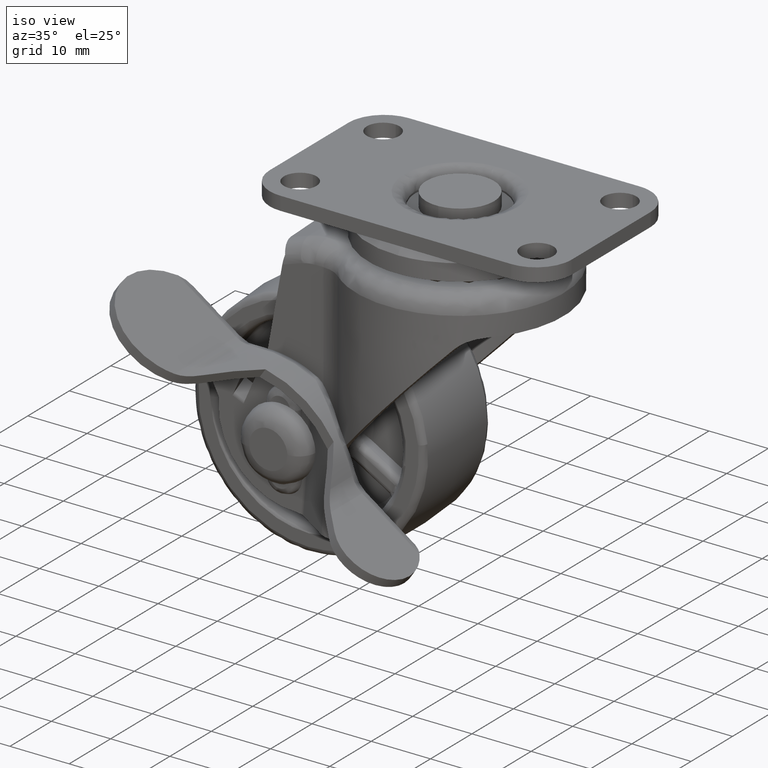
[diagram: clean part render]
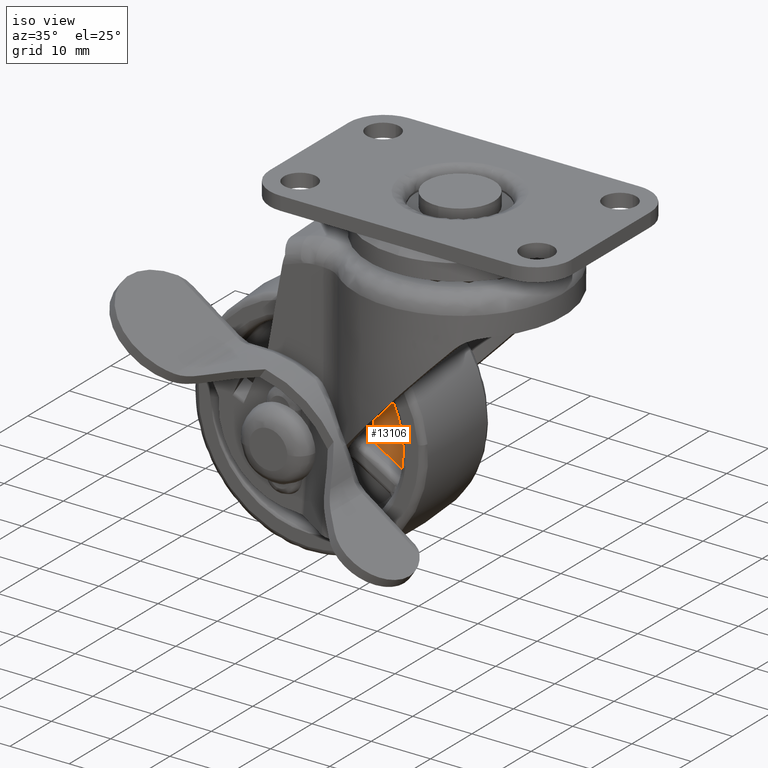
[diagram: same view with one face highlighted and labeled with its STEP entity id]
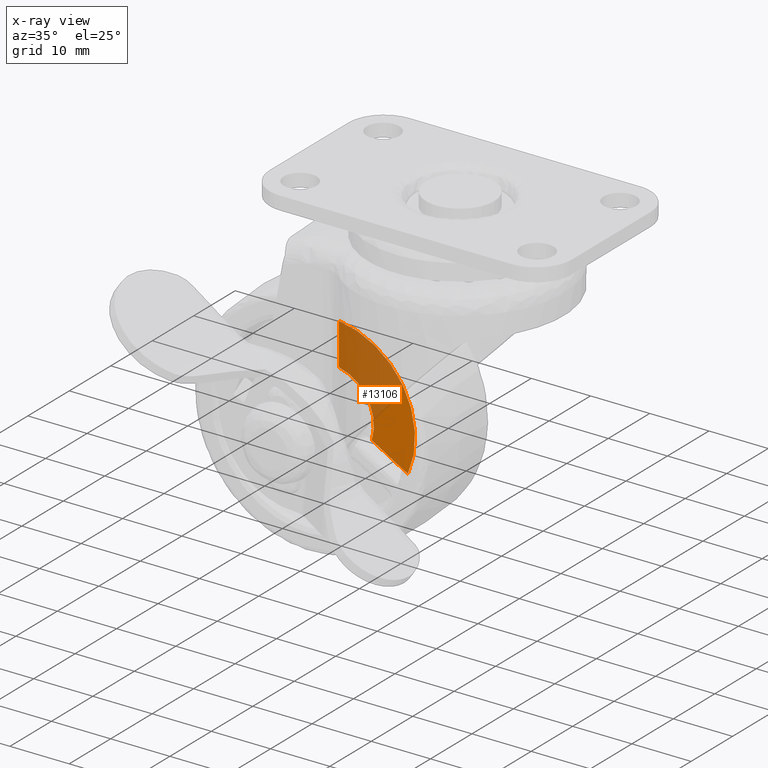
[diagram: x-ray of the same camera — body ghosted, the highlighted face saturated]
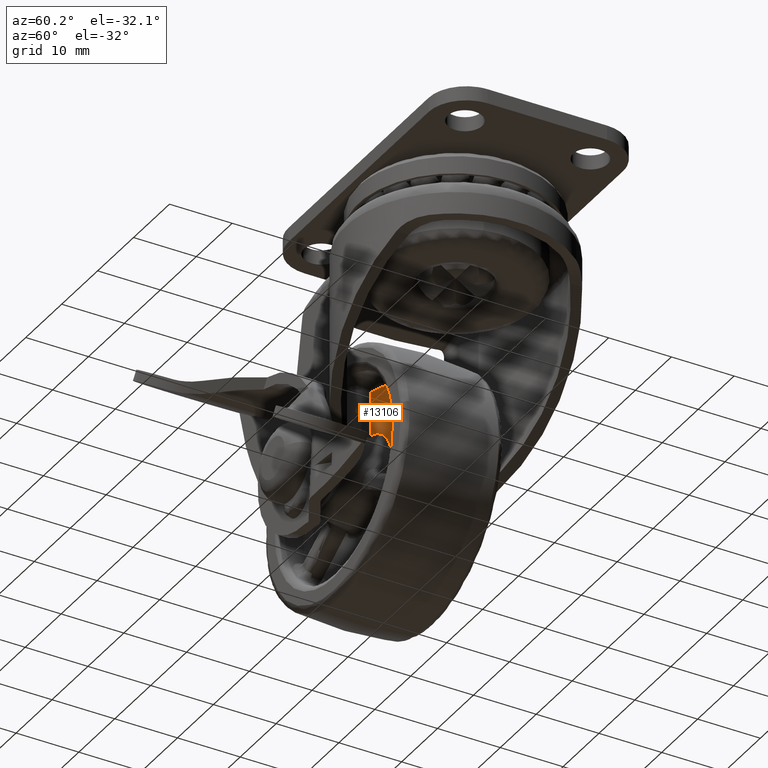
[diagram: same view with one face highlighted and labeled with its STEP entity id]
A machine part, iso view. The second image highlights one B-rep face of the part: STEP entity #13106.
The next image is the same camera in x-ray: the body ghosted, the highlighted face saturated — about 59% of this face is hidden behind the body in this view.
A second angle (auxiliary view) of the same face is appended — the face is thin or edge-on in the first view.
In plain terms, the highlighted face is a freeform B-spline surface patch.
Its self-contained STEP definition (entity closure, byte-faithful):
#9452=CARTESIAN_POINT('',(1.610611688794640,-3.0,14.410271683348601));
#9453=VERTEX_POINT('',#9452);
#9507=CARTESIAN_POINT('',(1.600002272071500,-3.0,14.264991993568501));
#9508=VERTEX_POINT('',#9507);
#9514=CARTESIAN_POINT('',(1.610611688794631,-3.0,14.410271683348601));
#9515=CARTESIAN_POINT('',(1.600002293550553,-3.000000000000000,14.338019226632412));
#9516=CARTESIAN_POINT('',(1.600002272071498,-3.0,14.264991993568501));
#9524=(BOUNDED_CURVE()B_SPLINE_CURVE(2,(#9514,#9515,#9516),.UNSPECIFIED.,.F.,.U.)CURVE()GEOMETRIC_REPRESENTATION_ITEM()QUASI_UNIFORM_CURVE()RATIONAL_B_SPLINE_CURVE((1.0,0.997344129678191,1.0))REPRESENTATION_ITEM(''));
#9525=EDGE_CURVE('',#9453,#9508,#9524,.T.);
#10360=CARTESIAN_POINT('',(13.153843692067060,-3.0,-5.746859882588030));
#10361=VERTEX_POINT('',#10360);
#10362=CARTESIAN_POINT('',(13.284964315328001,-3.0,-5.810311793738950));
#10363=VERTEX_POINT('',#10362);
#10364=CARTESIAN_POINT('',(13.153843692067060,-3.0,-5.746859882588032));
#10365=CARTESIAN_POINT('',(13.217087144128445,-2.999999999999999,-5.783373528009167));
#10366=CARTESIAN_POINT('',(13.284964315328001,-3.0,-5.810311793738951));
#10374=(BOUNDED_CURVE()B_SPLINE_CURVE(2,(#10364,#10365,#10366),.UNSPECIFIED.,.F.,.U.)CURVE()GEOMETRIC_REPRESENTATION_ITEM()QUASI_UNIFORM_CURVE()RATIONAL_B_SPLINE_CURVE((1.0,0.997344127812331,1.0))REPRESENTATION_ITEM(''));
#10375=EDGE_CURVE('',#10361,#10363,#10374,.T.);
#12660=CARTESIAN_POINT('',(7.180261685488610,-3.0,-2.298008686568985));
#12661=VERTEX_POINT('',#12660);
#12674=CARTESIAN_POINT('',(7.180261685488610,-3.0,-2.298008686568985));
#12675=CARTESIAN_POINT('',(13.153843692067060,-3.0,-5.746859882588030));
#12676=QUASI_UNIFORM_CURVE('',1,(#12674,#12675),.UNSPECIFIED.,.F.,.U.);
#12677=EDGE_CURVE('',#12661,#10361,#12676,.T.);
#12701=CARTESIAN_POINT('',(1.600000243293215,-3.0,7.367292651788981));
#12702=VERTEX_POINT('',#12701);
#12711=CARTESIAN_POINT('',(1.600002272071500,-3.0,14.264991993568501));
#12712=CARTESIAN_POINT('',(1.600000243293215,-3.0,7.367292651788981));
#12713=QUASI_UNIFORM_CURVE('',1,(#12711,#12712),.UNSPECIFIED.,.F.,.U.);
#12714=EDGE_CURVE('',#9508,#12702,#12713,.T.);
#13057=CARTESIAN_POINT('',(13.284964315327990,-3.0,-5.810311793738944));
#13058=CARTESIAN_POINT('',(16.221404350990944,-2.999999999999999,0.903699858771617));
#13059=CARTESIAN_POINT('',(12.557370153105900,-3.0,7.249996885370724));
#13060=CARTESIAN_POINT('',(8.893335955220849,-2.999999999999999,13.596293911969831));
#13061=CARTESIAN_POINT('',(1.610611688794641,-3.0,14.410271683348590));
#13069=(BOUNDED_CURVE()B_SPLINE_CURVE(2,(#13057,#13058,#13059,#13060,#13061),.UNSPECIFIED.,.F.,.U.)B_SPLINE_CURVE_WITH_KNOTS((3,2,3),(0.0,0.500000000000000,1.0),.UNSPECIFIED.)CURVE()GEOMETRIC_REPRESENTATION_ITEM()RATIONAL_B_SPLINE_CURVE((1.0,0.892496761013899,1.0,0.892496761013899,1.0))REPRESENTATION_ITEM(''));
#13070=EDGE_CURVE('',#10363,#9453,#13069,.T.);
#13079=CARTESIAN_POINT('',(0.955861911596032,-3.0,15.420289788837710));
#13080=CARTESIAN_POINT('',(0.955861911596032,-3.0,-6.820330441586370));
#13081=CARTESIAN_POINT('',(15.139801717105190,-3.0,15.420289788837710));
#13082=CARTESIAN_POINT('',(15.139801717105190,-3.0,-6.820330441586370));
#13083=B_SPLINE_SURFACE_WITH_KNOTS('',1,1,((#13079,#13081),(#13080,#13082)),.UNSPECIFIED.,.F.,.F.,.U.,(2,2),(2,2),(0.0,22.240620230424081),(0.0,14.183939805509160),.UNSPECIFIED.);
#13084=ORIENTED_EDGE('',*,*,#12677,.T.);
#13085=ORIENTED_EDGE('',*,*,#10375,.T.);
#13086=ORIENTED_EDGE('',*,*,#13070,.T.);
#13087=ORIENTED_EDGE('',*,*,#9525,.T.);
#13088=ORIENTED_EDGE('',*,*,#12714,.T.);
#13089=CARTESIAN_POINT('',(7.180261685488611,-3.0,-2.298008686568986));
#13090=CARTESIAN_POINT('',(8.197327913298572,-3.000000000000001,0.879873847048265));
#13091=CARTESIAN_POINT('',(6.528993978770387,-3.0,3.769514480781618));
#13092=CARTESIAN_POINT('',(4.860660044242201,-3.000000000000001,6.659155114514967));
#13093=CARTESIAN_POINT('',(1.600000243293215,-3.0,7.367292651788981));
#13101=(BOUNDED_CURVE()B_SPLINE_CURVE(2,(#13089,#13090,#13091,#13092,#13093),.UNSPECIFIED.,.F.,.U.)B_SPLINE_CURVE_WITH_KNOTS((3,2,3),(0.0,0.500000000000000,1.0),.UNSPECIFIED.)CURVE()GEOMETRIC_REPRESENTATION_ITEM()RATIONAL_B_SPLINE_CURVE((1.0,0.914441202038089,1.0,0.914441202038089,1.0))REPRESENTATION_ITEM(''));
#13102=EDGE_CURVE('',#12661,#12702,#13101,.T.);
#13103=ORIENTED_EDGE('',*,*,#13102,.F.);
#13104=EDGE_LOOP('',(#13084,#13085,#13086,#13087,#13088,#13103));
#13105=FACE_OUTER_BOUND('',#13104,.T.);
#13106=ADVANCED_FACE('',(#13105),#13083,.T.);